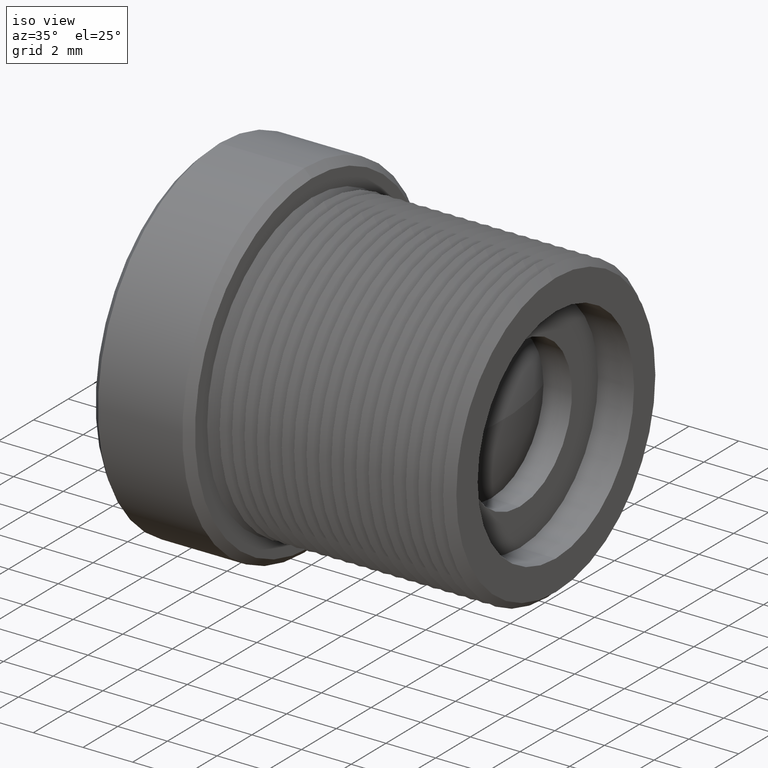
[diagram: clean part render]
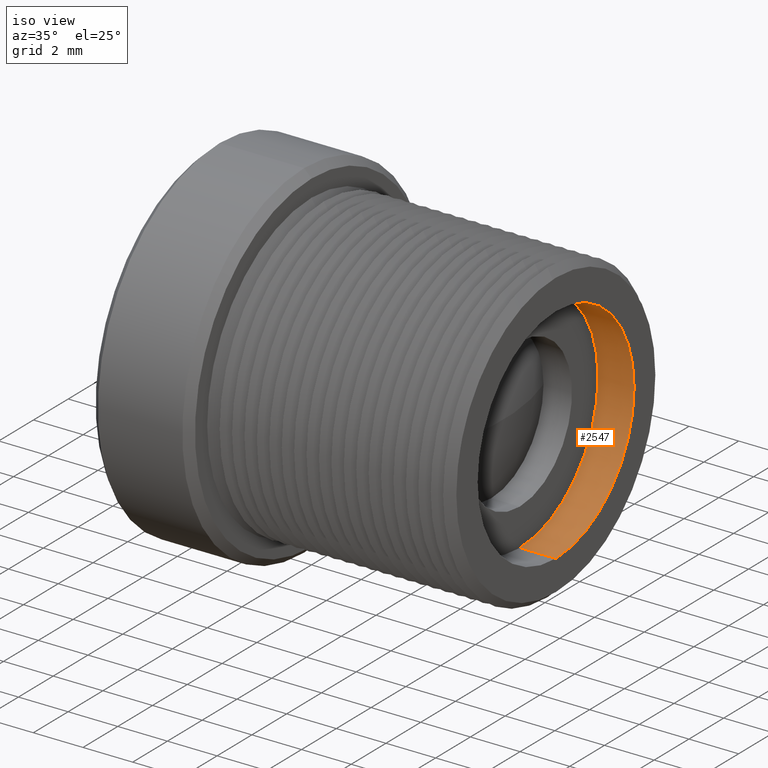
[diagram: same view with one face highlighted and labeled with its STEP entity id]
A machine part, iso view. The second image highlights one B-rep face of the part: STEP entity #2547.
In plain terms, the highlighted cylindrical surface (partial cylindrical patch) has radius 4.5 mm, axis along (-1, 0, 0).
Its self-contained STEP definition (entity closure, byte-faithful):
#65 = CARTESIAN_POINT ( 'NONE',  ( -7.893366913450439171, 0.001062446189248333894, -4.499999874578625381 ) ) ;
#111 = CARTESIAN_POINT ( 'NONE',  ( 5.840000000000070024, 2.220446049250315100E-13, 5.421010862427519705E-17 ) ) ;
#219 = CYLINDRICAL_SURFACE ( 'NONE', #970, 4.499999999999946709 ) ;
#299 = CARTESIAN_POINT ( 'NONE',  ( 5.840000000000070024, 0.001062446189248333894, -4.499999874578625381 ) ) ;
#331 = VECTOR ( 'NONE', #1617, 1000.000000000000000 ) ;
#406 = ORIENTED_EDGE ( 'NONE', *, *, #2159, .T. ) ;
#493 = VERTEX_POINT ( 'NONE', #299 ) ;
#554 = CARTESIAN_POINT ( 'NONE',  ( 4.389999999999894875, 0.001062446189248333894, -4.499999874578625381 ) ) ;
#684 = DIRECTION ( 'NONE',  ( 0.000000000000000000, -0.0002360991531231235868, 0.9999999721285947052 ) ) ;
#730 = EDGE_CURVE ( 'NONE', #493, #2367, #1896, .T. ) ;
#796 = CIRCLE ( 'NONE', #1862, 4.499999999999946709 ) ;
#802 = ORIENTED_EDGE ( 'NONE', *, *, #730, .F. ) ;
#915 = EDGE_CURVE ( 'NONE', #2376, #493, #796, .T. ) ;
#970 = AXIS2_PLACEMENT_3D ( 'NONE', #1030, #2261, #2443 ) ;
#1030 = CARTESIAN_POINT ( 'NONE',  ( -7.893366913450439171, 2.220446049250315100E-13, 5.421010862427519705E-17 ) ) ;
#1233 = VERTEX_POINT ( 'NONE', #1844 ) ;
#1254 = LINE ( 'NONE', #1875, #331 ) ;
#1293 = DIRECTION ( 'NONE',  ( -1.000000000000000000, 0.000000000000000000, 0.000000000000000000 ) ) ;
#1333 = ORIENTED_EDGE ( 'NONE', *, *, #915, .F. ) ;
#1456 = DIRECTION ( 'NONE',  ( -1.000000000000000000, 0.000000000000000000, 0.000000000000000000 ) ) ;
#1477 = CARTESIAN_POINT ( 'NONE',  ( 4.389999999999894875, 2.220446049250315100E-13, 5.421010862427519705E-17 ) ) ;
#1539 = DIRECTION ( 'NONE',  ( -1.000000000000000000, 0.000000000000000000, 0.000000000000000000 ) ) ;
#1617 = DIRECTION ( 'NONE',  ( -1.000000000000000000, 0.000000000000000000, 0.000000000000000000 ) ) ;
#1746 = DIRECTION ( 'NONE',  ( 0.000000000000000000, -0.0002360991531231235868, 0.9999999721285947052 ) ) ;
#1844 = CARTESIAN_POINT ( 'NONE',  ( 4.389999999999894875, -0.001062446188804244034, 4.499999874578625381 ) ) ;
#1862 = AXIS2_PLACEMENT_3D ( 'NONE', #111, #1539, #1746 ) ;
#1875 = CARTESIAN_POINT ( 'NONE',  ( -7.893366913450439171, -0.001062446188804244034, 4.499999874578625381 ) ) ;
#1896 = LINE ( 'NONE', #65, #2562 ) ;
#1901 = EDGE_LOOP ( 'NONE', ( #802, #1333, #2162, #406 ) ) ;
#1960 = CARTESIAN_POINT ( 'NONE',  ( 5.840000000000070024, -0.001062446188804244034, 4.499999874578625381 ) ) ;
#2042 = FACE_OUTER_BOUND ( 'NONE', #1901, .T. ) ;
#2159 = EDGE_CURVE ( 'NONE', #1233, #2367, #2398, .T. ) ;
#2162 = ORIENTED_EDGE ( 'NONE', *, *, #2456, .T. ) ;
#2261 = DIRECTION ( 'NONE',  ( -1.000000000000000000, 0.000000000000000000, 0.000000000000000000 ) ) ;
#2367 = VERTEX_POINT ( 'NONE', #554 ) ;
#2376 = VERTEX_POINT ( 'NONE', #1960 ) ;
#2398 = CIRCLE ( 'NONE', #2525, 4.499999999999946709 ) ;
#2443 = DIRECTION ( 'NONE',  ( 0.000000000000000000, -0.0002360991531231235868, 0.9999999721285947052 ) ) ;
#2456 = EDGE_CURVE ( 'NONE', #2376, #1233, #1254, .T. ) ;
#2525 = AXIS2_PLACEMENT_3D ( 'NONE', #1477, #1456, #684 ) ;
#2547 = ADVANCED_FACE ( 'NONE', ( #2042 ), #219, .F. ) ;
#2562 = VECTOR ( 'NONE', #1293, 1000.000000000000000 ) ;